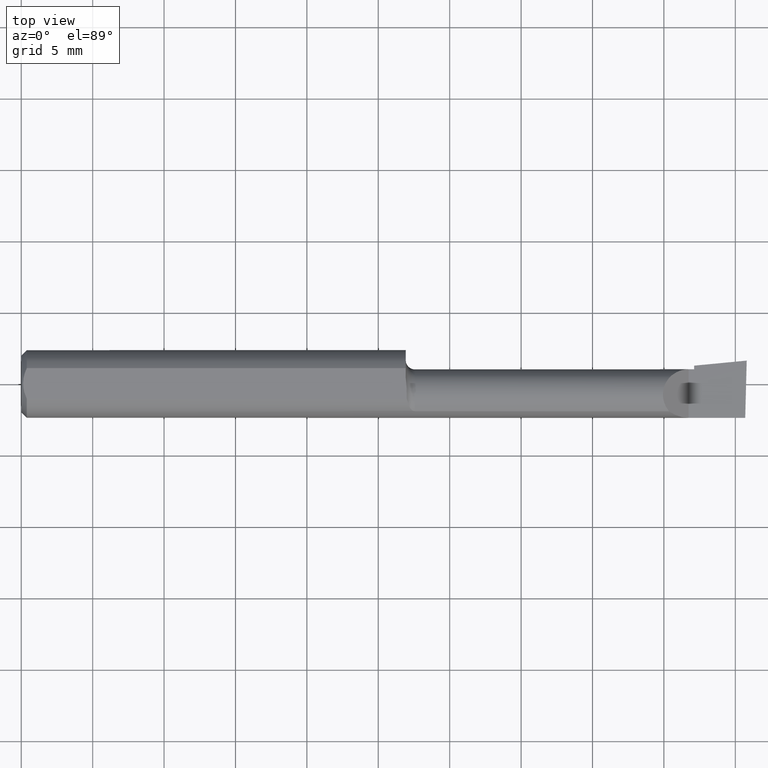
[diagram: clean part render]
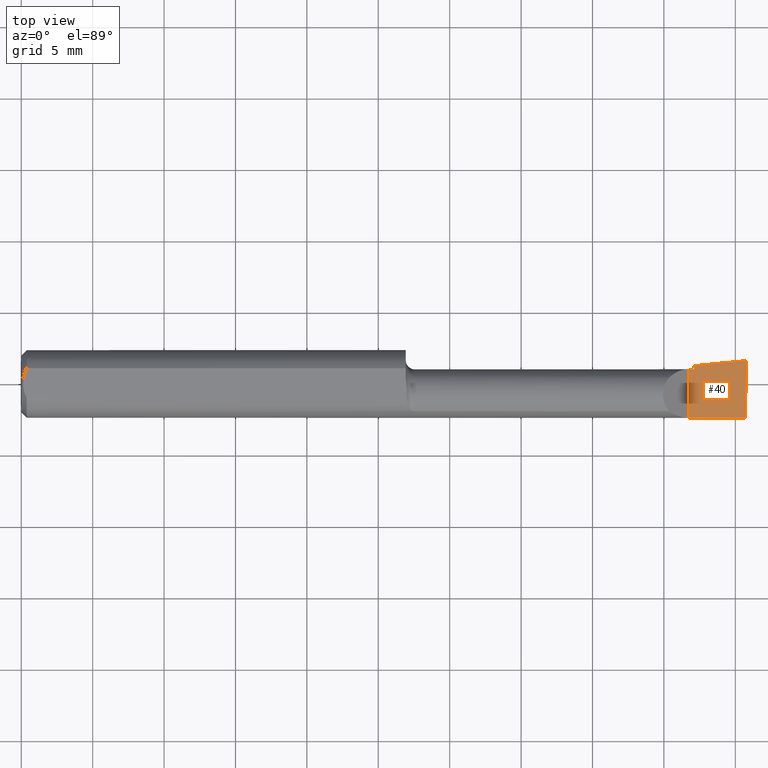
[diagram: same view with one face highlighted and labeled with its STEP entity id]
A machine part, top view. The second image highlights one B-rep face of the part: STEP entity #40.
In plain terms, the highlighted planar face has unit normal (-0, 0, -1).
Its self-contained STEP definition (entity closure, byte-faithful):
#14 = DIRECTION ( 'NONE',  ( -0.02617694830786939167, -0.9996573249755573709, 1.459184416195897376E-17 ) ) ;
#20 = EDGE_CURVE ( 'NONE', #186, #231, #491, .T. ) ;
#32 = LINE ( 'NONE', #368, #374 ) ;
#40 = ADVANCED_FACE ( 'NONE', ( #196 ), #290, .F. ) ;
#44 = CARTESIAN_POINT ( 'NONE',  ( 2.000000000000004441, 0.06440000000001341873, 4.273634705088531894E-14 ) ) ;
#45 = CARTESIAN_POINT ( 'NONE',  ( -3.030643867965639230E-19, 0.04039999999999993596, 1.030335658007946046E-15 ) ) ;
#53 = CARTESIAN_POINT ( 'NONE',  ( 1.991772787678609324, -0.2497845628634190740, -6.377686106282058433E-17 ) ) ;
#94 = CARTESIAN_POINT ( 'NONE',  ( 2.000000000000000000, -0.2500000000000000555, -6.829619984160658046E-17 ) ) ;
#100 = EDGE_CURVE ( 'NONE', #614, #186, #102, .T. ) ;
#102 = LINE ( 'NONE', #53, #595 ) ;
#115 = ORIENTED_EDGE ( 'NONE', *, *, #552, .F. ) ;
#125 = AXIS2_PLACEMENT_3D ( 'NONE', #94, #392, #585 ) ;
#126 = DIRECTION ( 'NONE',  ( -0.000000000000000000, 1.000000000000000000, -0.000000000000000000 ) ) ;
#133 = CARTESIAN_POINT ( 'NONE',  ( 1.854999999999999982, -0.2500000000000000555, 1.135460985248596835E-17 ) ) ;
#137 = VECTOR ( 'NONE', #194, 39.37007874015748143 ) ;
#155 = VECTOR ( 'NONE', #383, 39.37007874015748143 ) ;
#162 = CARTESIAN_POINT ( 'NONE',  ( 1.013387277386880392, -0.03060000000000022771, 4.736658843696217583E-16 ) ) ;
#175 = CARTESIAN_POINT ( 'NONE',  ( 1.854999999999999982, 0.05043808801135910014, 1.028711510114199084E-15 ) ) ;
#186 = VERTEX_POINT ( 'NONE', #308 ) ;
#192 = VERTEX_POINT ( 'NONE', #596 ) ;
#194 = DIRECTION ( 'NONE',  ( -1.000000000000000000, -0.000000000000000000, -0.000000000000000000 ) ) ;
#196 = FACE_OUTER_BOUND ( 'NONE', #366, .T. ) ;
#220 = EDGE_CURVE ( 'NONE', #231, #322, #32, .T. ) ;
#231 = VERTEX_POINT ( 'NONE', #268 ) ;
#261 = LINE ( 'NONE', #162, #267 ) ;
#267 = VECTOR ( 'NONE', #461, 39.37007874015748143 ) ;
#268 = CARTESIAN_POINT ( 'NONE',  ( 1.840000000000000080, -0.09360000000000005815, 1.959434878635762025E-17 ) ) ;
#272 = ORIENTED_EDGE ( 'NONE', *, *, #20, .F. ) ;
#290 = PLANE ( 'NONE',  #125 ) ;
#308 = CARTESIAN_POINT ( 'NONE',  ( 1.995862624392068074, -0.09360000000000009979, -6.605666309584466665E-17 ) ) ;
#318 = VERTEX_POINT ( 'NONE', #175 ) ;
#322 = VERTEX_POINT ( 'NONE', #618 ) ;
#335 = DIRECTION ( 'NONE',  ( 1.000000000000000000, 4.268512490100411279E-18, 0.000000000000000000 ) ) ;
#366 = EDGE_LOOP ( 'NONE', ( #384, #115, #521, #533, #473, #272 ) ) ;
#368 = CARTESIAN_POINT ( 'NONE',  ( 1.840000000000000080, -0.2500000000000000555, 1.959434878635762025E-17 ) ) ;
#372 = EDGE_CURVE ( 'NONE', #322, #192, #573, .T. ) ;
#374 = VECTOR ( 'NONE', #126, 39.37007874015748143 ) ;
#380 = LINE ( 'NONE', #133, #155 ) ;
#383 = DIRECTION ( 'NONE',  ( -4.268512490100411279E-18, 1.000000000000000000, 2.344761903626518103E-33 ) ) ;
#384 = ORIENTED_EDGE ( 'NONE', *, *, #100, .F. ) ;
#386 = VECTOR ( 'NONE', #335, 39.37007874015748143 ) ;
#392 = DIRECTION ( 'NONE',  ( -5.493159289247764363E-16, 0.000000000000000000, -1.000000000000000000 ) ) ;
#461 = DIRECTION ( 'NONE',  ( 0.9953961983671787417, 0.09584575252022466130, -5.467869873542577569E-16 ) ) ;
#467 = EDGE_CURVE ( 'NONE', #192, #318, #380, .T. ) ;
#473 = ORIENTED_EDGE ( 'NONE', *, *, #220, .F. ) ;
#491 = LINE ( 'NONE', #583, #137 ) ;
#521 = ORIENTED_EDGE ( 'NONE', *, *, #467, .F. ) ;
#533 = ORIENTED_EDGE ( 'NONE', *, *, #372, .F. ) ;
#552 = EDGE_CURVE ( 'NONE', #318, #614, #261, .T. ) ;
#573 = LINE ( 'NONE', #45, #386 ) ;
#583 = CARTESIAN_POINT ( 'NONE',  ( 5.659797890829555466E-31, -0.09359999999999998876, 1.030335658007946046E-15 ) ) ;
#585 = DIRECTION ( 'NONE',  ( -1.000000000000000000, 0.000000000000000000, 5.493159289247764363E-16 ) ) ;
#595 = VECTOR ( 'NONE', #14, 39.37007874015748143 ) ;
#596 = CARTESIAN_POINT ( 'NONE',  ( 1.854999999999999982, 0.04039999999999999841, 1.030335658007946637E-15 ) ) ;
#614 = VERTEX_POINT ( 'NONE', #44 ) ;
#618 = CARTESIAN_POINT ( 'NONE',  ( 1.840000000000000080, 0.04039999999999985963, 1.959434878635762025E-17 ) ) ;